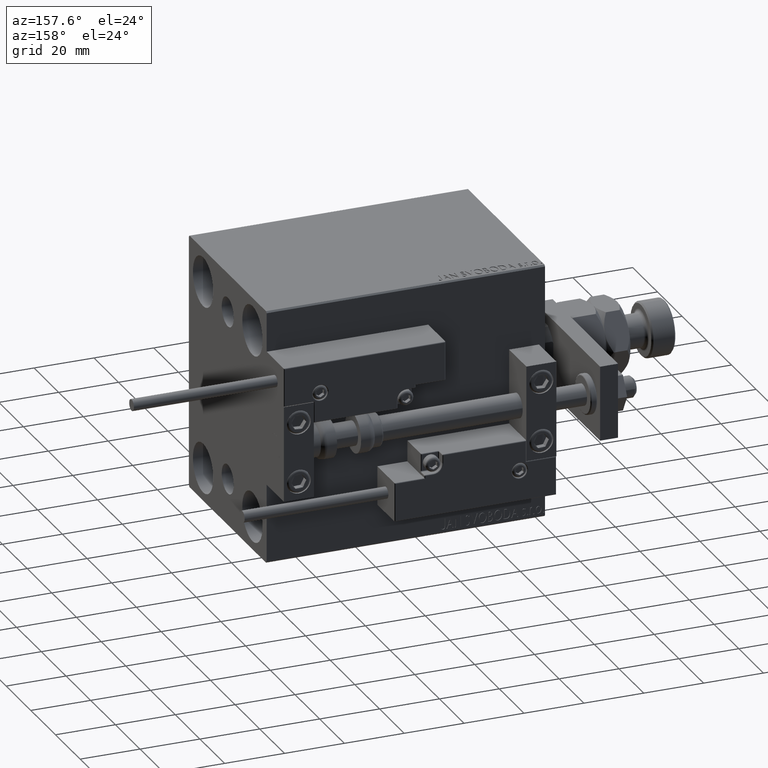
[diagram: clean part render]
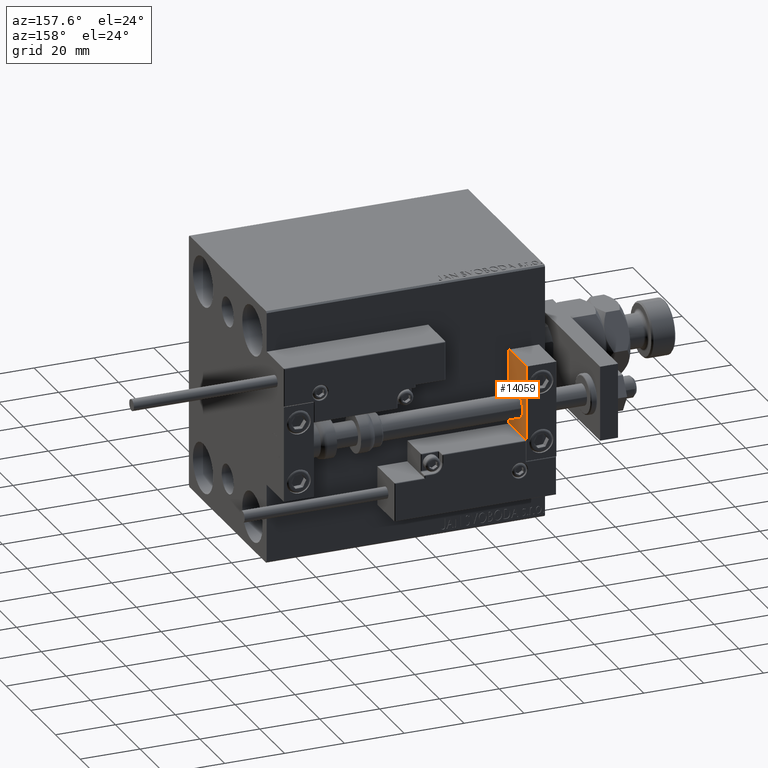
[diagram: same view with one face highlighted and labeled with its STEP entity id]
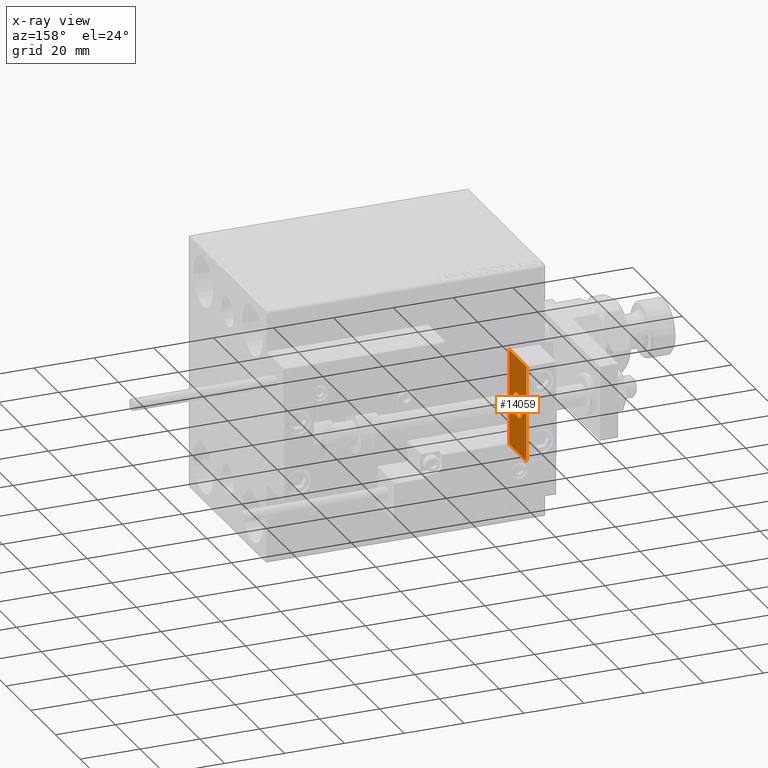
[diagram: x-ray of the same camera — body ghosted, the highlighted face saturated]
A machine part, auxiliary view. The second image highlights one B-rep face of the part: STEP entity #14059.
The next image is the same camera in x-ray: the body ghosted, the highlighted face saturated — about 0% of this face is hidden behind the body in this view.
In plain terms, the highlighted planar face has unit normal (1, 0, -0).
Its self-contained STEP definition (entity closure, byte-faithful):
#713 = ORIENTED_EDGE ( 'NONE', *, *, #26773, .F. ) ;
#1045 = VERTEX_POINT ( 'NONE', #26506 ) ;
#1130 = EDGE_CURVE ( 'NONE', #42520, #7500, #39268, .T. ) ;
#1343 = VERTEX_POINT ( 'NONE', #46249 ) ;
#2668 = VERTEX_POINT ( 'NONE', #27602 ) ;
#3026 = ORIENTED_EDGE ( 'NONE', *, *, #37114, .F. ) ;
#4256 = FACE_OUTER_BOUND ( 'NONE', #16004, .T. ) ;
#6100 = CARTESIAN_POINT ( 'NONE',  ( 0.000000000000000000, 0.000000000000000000, 0.000000000000000000 ) ) ;
#7500 = VERTEX_POINT ( 'NONE', #25251 ) ;
#8716 = DIRECTION ( 'NONE',  ( -0.000000000000000000, 0.000000000000000000, 1.000000000000000000 ) ) ;
#11200 = DIRECTION ( 'NONE',  ( 0.000000000000000000, 0.000000000000000000, -1.000000000000000000 ) ) ;
#11396 = CARTESIAN_POINT ( 'NONE',  ( 0.000000000000000000, -7.000000000000000000, 15.99999999999999289 ) ) ;
#13702 = DIRECTION ( 'NONE',  ( 0.000000000000000000, 0.000000000000000000, 1.000000000000000000 ) ) ;
#14059 = ADVANCED_FACE ( 'NONE', ( #21279, #4256 ), #44547, .T. ) ;
#16004 = EDGE_LOOP ( 'NONE', ( #39452, #3026, #32948, #20509 ) ) ;
#16056 = CARTESIAN_POINT ( 'NONE',  ( 0.000000000000000000, 7.000000000000000000, 15.99999999999999289 ) ) ;
#17198 = VECTOR ( 'NONE', #32932, 1000.000000000000000 ) ;
#17341 = DIRECTION ( 'NONE',  ( -1.000000000000000000, 0.000000000000000000, -0.000000000000000000 ) ) ;
#18543 = CARTESIAN_POINT ( 'NONE',  ( 0.000000000000000000, 7.000000000000000000, 15.99999999999999289 ) ) ;
#19122 = VERTEX_POINT ( 'NONE', #50548 ) ;
#20509 = ORIENTED_EDGE ( 'NONE', *, *, #1130, .T. ) ;
#21279 = FACE_BOUND ( 'NONE', #25011, .T. ) ;
#21669 = CIRCLE ( 'NONE', #28328, 4.000000000000000000 ) ;
#23372 = AXIS2_PLACEMENT_3D ( 'NONE', #40347, #17341, #8716 ) ;
#25011 = EDGE_LOOP ( 'NONE', ( #713, #26375 ) ) ;
#25251 = CARTESIAN_POINT ( 'NONE',  ( 0.000000000000000000, -7.000000000000000000, -16.00000000000000711 ) ) ;
#26375 = ORIENTED_EDGE ( 'NONE', *, *, #31137, .F. ) ;
#26506 = CARTESIAN_POINT ( 'NONE',  ( 0.000000000000000000, 7.000000000000000000, 15.99999999999999289 ) ) ;
#26773 = EDGE_CURVE ( 'NONE', #1343, #19122, #21669, .T. ) ;
#27105 = VECTOR ( 'NONE', #48505, 1000.000000000000000 ) ;
#27602 = CARTESIAN_POINT ( 'NONE',  ( 0.000000000000000000, -7.000000000000000000, 15.99999999999999289 ) ) ;
#27659 = AXIS2_PLACEMENT_3D ( 'NONE', #6100, #34346, #13702 ) ;
#27812 = DIRECTION ( 'NONE',  ( -1.000000000000000000, -0.000000000000000000, -0.000000000000000000 ) ) ;
#28328 = AXIS2_PLACEMENT_3D ( 'NONE', #47685, #27812, #31739 ) ;
#31137 = EDGE_CURVE ( 'NONE', #19122, #1343, #50222, .T. ) ;
#31739 = DIRECTION ( 'NONE',  ( 0.000000000000000000, 0.000000000000000000, 1.000000000000000000 ) ) ;
#32932 = DIRECTION ( 'NONE',  ( 0.000000000000000000, -1.000000000000000000, 0.000000000000000000 ) ) ;
#32948 = ORIENTED_EDGE ( 'NONE', *, *, #35141, .T. ) ;
#34346 = DIRECTION ( 'NONE',  ( -1.000000000000000000, -0.000000000000000000, -0.000000000000000000 ) ) ;
#35141 = EDGE_CURVE ( 'NONE', #1045, #42520, #50453, .T. ) ;
#36195 = DIRECTION ( 'NONE',  ( 0.000000000000000000, -1.000000000000000000, 0.000000000000000000 ) ) ;
#37114 = EDGE_CURVE ( 'NONE', #1045, #2668, #40102, .T. ) ;
#39268 = LINE ( 'NONE', #43211, #17198 ) ;
#39452 = ORIENTED_EDGE ( 'NONE', *, *, #41230, .F. ) ;
#40102 = LINE ( 'NONE', #16056, #44458 ) ;
#40347 = CARTESIAN_POINT ( 'NONE',  ( 0.000000000000000000, 0.000000000000000000, 0.000000000000000000 ) ) ;
#41230 = EDGE_CURVE ( 'NONE', #2668, #7500, #47221, .T. ) ;
#42520 = VERTEX_POINT ( 'NONE', #45267 ) ;
#43211 = CARTESIAN_POINT ( 'NONE',  ( 0.000000000000000000, 7.000000000000000000, -16.00000000000000711 ) ) ;
#44379 = VECTOR ( 'NONE', #11200, 1000.000000000000000 ) ;
#44458 = VECTOR ( 'NONE', #36195, 1000.000000000000000 ) ;
#44547 = PLANE ( 'NONE',  #23372 ) ;
#45267 = CARTESIAN_POINT ( 'NONE',  ( 0.000000000000000000, 7.000000000000000000, -16.00000000000000711 ) ) ;
#46249 = CARTESIAN_POINT ( 'NONE',  ( 0.000000000000000000, 0.000000000000000000, 4.000000000000000000 ) ) ;
#47221 = LINE ( 'NONE', #11396, #27105 ) ;
#47685 = CARTESIAN_POINT ( 'NONE',  ( 0.000000000000000000, 0.000000000000000000, 0.000000000000000000 ) ) ;
#48505 = DIRECTION ( 'NONE',  ( 0.000000000000000000, 0.000000000000000000, -1.000000000000000000 ) ) ;
#50222 = CIRCLE ( 'NONE', #27659, 4.000000000000000000 ) ;
#50453 = LINE ( 'NONE', #18543, #44379 ) ;
#50548 = CARTESIAN_POINT ( 'NONE',  ( 0.000000000000000000, 4.898587196589412829E-16, -4.000000000000000000 ) ) ;